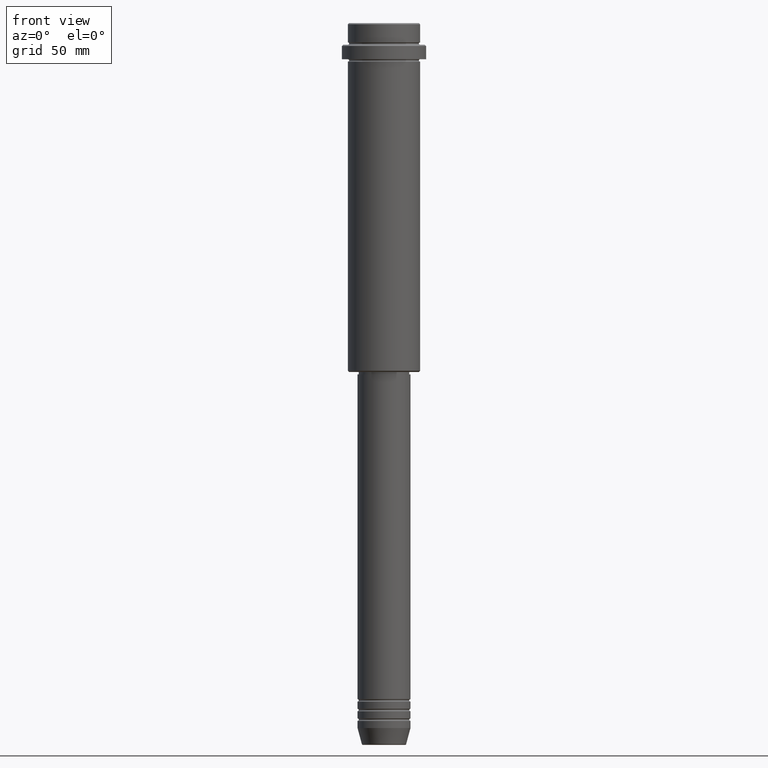
[diagram: clean part render]
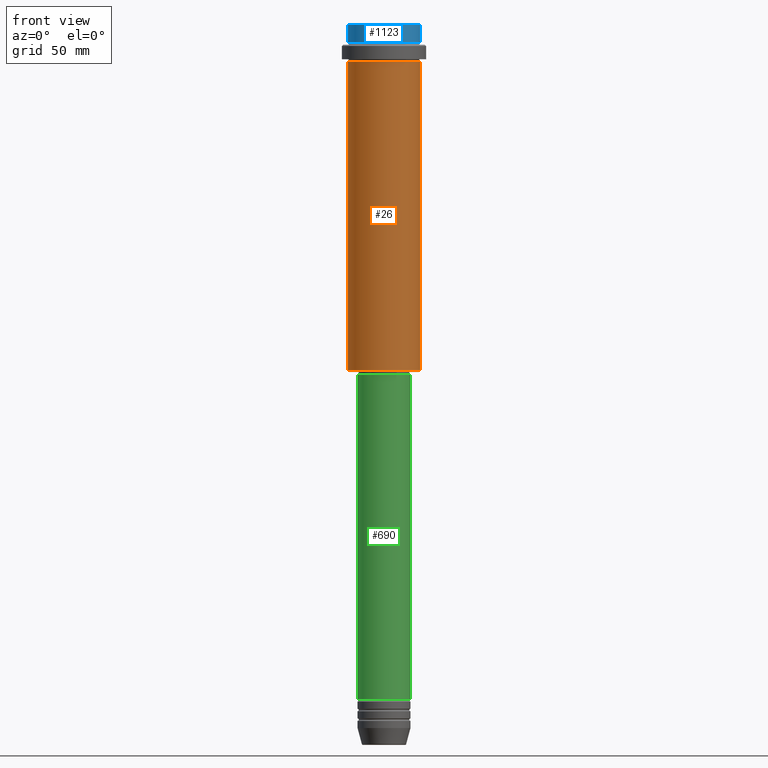
[diagram: same view with three faces highlighted in distinct colors, each labeled with its STEP entity id]
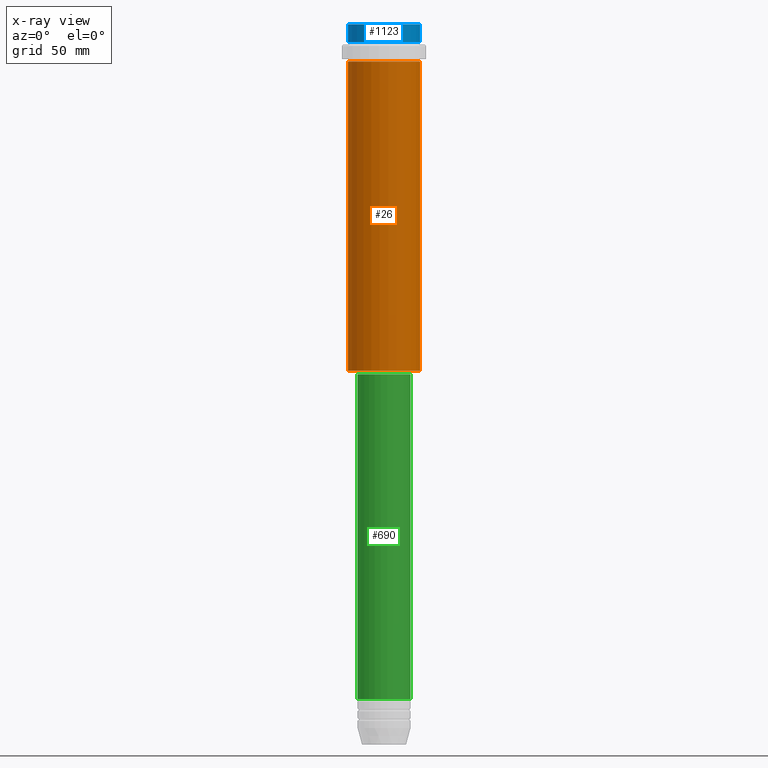
[diagram: x-ray of the same camera — body ghosted, the three highlighted faces saturated]
A machine part, front view with three faces highlighted in distinct colors.
The next image is the same camera in x-ray (body ghosted, the three faces saturated) — at least one of them is partly hidden behind the body in this view.
Their STEP definitions:

[orange] entity #26 — the highlighted cylindrical surface (edge-blend (fillet) strip) has radius 15 mm, axis along (-0, -0, 1).
#26 = ADVANCED_FACE ( 'NONE', ( #1009 ), #709, .T. ) ;
#58 = EDGE_CURVE ( 'NONE', #1363, #704, #749, .T. ) ;
#116 = AXIS2_PLACEMENT_3D ( 'NONE', #368, #834, #1224 ) ;
#150 = CARTESIAN_POINT ( 'NONE',  ( -15.00000000000000000, 1.836970198721029589E-15, -144.5000000000000568 ) ) ;
#166 = DIRECTION ( 'NONE',  ( -0.000000000000000000, -0.000000000000000000, 1.000000000000000000 ) ) ;
#260 = CARTESIAN_POINT ( 'NONE',  ( -15.00000000000000355, 1.836970198721029983E-15, -16.00000000000000000 ) ) ;
#261 = VERTEX_POINT ( 'NONE', #260 ) ;
#275 = CARTESIAN_POINT ( 'NONE',  ( -15.00000000000000000, 1.836970198721029589E-15, 0.000000000000000000 ) ) ;
#322 = ORIENTED_EDGE ( 'NONE', *, *, #657, .F. ) ;
#340 = EDGE_LOOP ( 'NONE', ( #322, #1289, #939, #1336 ) ) ;
#368 = CARTESIAN_POINT ( 'NONE',  ( 0.000000000000000000, 0.000000000000000000, -144.5000000000000568 ) ) ;
#373 = DIRECTION ( 'NONE',  ( -0.000000000000000000, -0.000000000000000000, 1.000000000000000000 ) ) ;
#386 = DIRECTION ( 'NONE',  ( 1.000000000000000000, 0.000000000000000000, 0.000000000000000000 ) ) ;
#504 = AXIS2_PLACEMENT_3D ( 'NONE', #1159, #855, #386 ) ;
#555 = AXIS2_PLACEMENT_3D ( 'NONE', #1344, #166, #1121 ) ;
#582 = CARTESIAN_POINT ( 'NONE',  ( 15.00000000000000000, 0.000000000000000000, 0.000000000000000000 ) ) ;
#657 = EDGE_CURVE ( 'NONE', #1363, #261, #1249, .T. ) ;
#667 = CARTESIAN_POINT ( 'NONE',  ( 15.00000000000000178, 0.000000000000000000, -16.00000000000000000 ) ) ;
#704 = VERTEX_POINT ( 'NONE', #787 ) ;
#709 = CYLINDRICAL_SURFACE ( 'NONE', #555, 15.00000000000000000 ) ;
#735 = DIRECTION ( 'NONE',  ( -0.000000000000000000, -0.000000000000000000, 1.000000000000000000 ) ) ;
#749 = CIRCLE ( 'NONE', #116, 15.00000000000000000 ) ;
#750 = CIRCLE ( 'NONE', #504, 15.00000000000000178 ) ;
#787 = CARTESIAN_POINT ( 'NONE',  ( 15.00000000000000000, 0.000000000000000000, -144.5000000000000568 ) ) ;
#834 = DIRECTION ( 'NONE',  ( -0.000000000000000000, -0.000000000000000000, 1.000000000000000000 ) ) ;
#855 = DIRECTION ( 'NONE',  ( -0.000000000000000000, -0.000000000000000000, 1.000000000000000000 ) ) ;
#879 = VECTOR ( 'NONE', #373, 1000.000000000000000 ) ;
#939 = ORIENTED_EDGE ( 'NONE', *, *, #995, .T. ) ;
#995 = EDGE_CURVE ( 'NONE', #704, #1262, #1164, .T. ) ;
#1009 = FACE_OUTER_BOUND ( 'NONE', #340, .T. ) ;
#1098 = VECTOR ( 'NONE', #735, 1000.000000000000000 ) ;
#1121 = DIRECTION ( 'NONE',  ( 1.000000000000000000, 0.000000000000000000, 0.000000000000000000 ) ) ;
#1149 = EDGE_CURVE ( 'NONE', #261, #1262, #750, .T. ) ;
#1159 = CARTESIAN_POINT ( 'NONE',  ( 0.000000000000000000, 0.000000000000000000, -16.00000000000000000 ) ) ;
#1164 = LINE ( 'NONE', #582, #879 ) ;
#1224 = DIRECTION ( 'NONE',  ( -1.000000000000000000, 0.000000000000000000, 0.000000000000000000 ) ) ;
#1249 = LINE ( 'NONE', #275, #1098 ) ;
#1262 = VERTEX_POINT ( 'NONE', #667 ) ;
#1289 = ORIENTED_EDGE ( 'NONE', *, *, #58, .T. ) ;
#1336 = ORIENTED_EDGE ( 'NONE', *, *, #1149, .F. ) ;
#1344 = CARTESIAN_POINT ( 'NONE',  ( 0.000000000000000000, 0.000000000000000000, 0.000000000000000000 ) ) ;
#1363 = VERTEX_POINT ( 'NONE', #150 ) ;

[blue] entity #1123 — the highlighted cylindrical surface (edge-blend (fillet) strip) has radius 15 mm, axis along (-0, -0, 1).
#97 = CIRCLE ( 'NONE', #418, 15.00000000000000000 ) ;
#144 = CARTESIAN_POINT ( 'NONE',  ( -15.00000000000000000, 1.836970198721029589E-15, -7.999999999999998224 ) ) ;
#146 = EDGE_LOOP ( 'NONE', ( #168, #1412, #918, #1393 ) ) ;
#168 = ORIENTED_EDGE ( 'NONE', *, *, #1068, .F. ) ;
#192 = CYLINDRICAL_SURFACE ( 'NONE', #437, 15.00000000000000000 ) ;
#209 = DIRECTION ( 'NONE',  ( 1.000000000000000000, 0.000000000000000000, 0.000000000000000000 ) ) ;
#223 = CARTESIAN_POINT ( 'NONE',  ( 15.00000000000000000, 0.000000000000000000, -0.5000000000000386358 ) ) ;
#233 = AXIS2_PLACEMENT_3D ( 'NONE', #1414, #342, #209 ) ;
#316 = VERTEX_POINT ( 'NONE', #144 ) ;
#342 = DIRECTION ( 'NONE',  ( -0.000000000000000000, -0.000000000000000000, 1.000000000000000000 ) ) ;
#377 = CARTESIAN_POINT ( 'NONE',  ( -15.00000000000000000, 1.836970198721029589E-15, -0.5000000000000386358 ) ) ;
#398 = DIRECTION ( 'NONE',  ( 1.000000000000000000, 0.000000000000000000, 0.000000000000000000 ) ) ;
#400 = DIRECTION ( 'NONE',  ( 0.000000000000000000, 0.000000000000000000, -1.000000000000000000 ) ) ;
#418 = AXIS2_PLACEMENT_3D ( 'NONE', #714, #400, #1132 ) ;
#437 = AXIS2_PLACEMENT_3D ( 'NONE', #1365, #849, #398 ) ;
#510 = VECTOR ( 'NONE', #853, 1000.000000000000000 ) ;
#539 = CARTESIAN_POINT ( 'NONE',  ( 15.00000000000000000, 0.000000000000000000, 0.000000000000000000 ) ) ;
#545 = EDGE_CURVE ( 'NONE', #1186, #990, #974, .T. ) ;
#631 = EDGE_CURVE ( 'NONE', #990, #868, #97, .T. ) ;
#643 = CARTESIAN_POINT ( 'NONE',  ( 15.00000000000000000, 0.000000000000000000, -7.999999999999998224 ) ) ;
#714 = CARTESIAN_POINT ( 'NONE',  ( 0.000000000000000000, 0.000000000000000000, -0.5000000000000386358 ) ) ;
#733 = DIRECTION ( 'NONE',  ( -0.000000000000000000, -0.000000000000000000, 1.000000000000000000 ) ) ;
#828 = LINE ( 'NONE', #1142, #945 ) ;
#849 = DIRECTION ( 'NONE',  ( -0.000000000000000000, -0.000000000000000000, 1.000000000000000000 ) ) ;
#853 = DIRECTION ( 'NONE',  ( -0.000000000000000000, -0.000000000000000000, 1.000000000000000000 ) ) ;
#868 = VERTEX_POINT ( 'NONE', #377 ) ;
#918 = ORIENTED_EDGE ( 'NONE', *, *, #545, .T. ) ;
#945 = VECTOR ( 'NONE', #733, 1000.000000000000000 ) ;
#974 = LINE ( 'NONE', #539, #510 ) ;
#990 = VERTEX_POINT ( 'NONE', #223 ) ;
#1068 = EDGE_CURVE ( 'NONE', #316, #868, #828, .T. ) ;
#1123 = ADVANCED_FACE ( 'NONE', ( #1377 ), #192, .T. ) ;
#1132 = DIRECTION ( 'NONE',  ( 1.000000000000000000, 0.000000000000000000, 0.000000000000000000 ) ) ;
#1142 = CARTESIAN_POINT ( 'NONE',  ( -15.00000000000000000, 1.836970198721029589E-15, 0.000000000000000000 ) ) ;
#1186 = VERTEX_POINT ( 'NONE', #643 ) ;
#1194 = EDGE_CURVE ( 'NONE', #316, #1186, #1226, .T. ) ;
#1226 = CIRCLE ( 'NONE', #233, 15.00000000000000000 ) ;
#1365 = CARTESIAN_POINT ( 'NONE',  ( 0.000000000000000000, 0.000000000000000000, 0.000000000000000000 ) ) ;
#1377 = FACE_OUTER_BOUND ( 'NONE', #146, .T. ) ;
#1393 = ORIENTED_EDGE ( 'NONE', *, *, #631, .T. ) ;
#1412 = ORIENTED_EDGE ( 'NONE', *, *, #1194, .T. ) ;
#1414 = CARTESIAN_POINT ( 'NONE',  ( 0.000000000000000000, 0.000000000000000000, -7.999999999999998224 ) ) ;

[green] entity #690 — the highlighted cylindrical surface (edge-blend (fillet) strip) has radius 11 mm, axis along (-0, -0, 1).
#17 = CARTESIAN_POINT ( 'NONE',  ( 0.000000000000000000, 0.000000000000000000, -280.9999999999999432 ) ) ;
#53 = ORIENTED_EDGE ( 'NONE', *, *, #673, .F. ) ;
#80 = CARTESIAN_POINT ( 'NONE',  ( 10.99999999999999822, 0.000000000000000000, -145.9999999999999432 ) ) ;
#125 = ORIENTED_EDGE ( 'NONE', *, *, #512, .T. ) ;
#160 = DIRECTION ( 'NONE',  ( -0.000000000000000000, -0.000000000000000000, 1.000000000000000000 ) ) ;
#174 = DIRECTION ( 'NONE',  ( 1.000000000000000000, 0.000000000000000000, 0.000000000000000000 ) ) ;
#206 = EDGE_LOOP ( 'NONE', ( #278, #399, #125, #53 ) ) ;
#215 = EDGE_CURVE ( 'NONE', #421, #569, #668, .T. ) ;
#218 = CARTESIAN_POINT ( 'NONE',  ( 0.000000000000000000, 0.000000000000000000, 0.000000000000000000 ) ) ;
#247 = DIRECTION ( 'NONE',  ( -0.000000000000000000, -0.000000000000000000, 1.000000000000000000 ) ) ;
#278 = ORIENTED_EDGE ( 'NONE', *, *, #215, .F. ) ;
#292 = CARTESIAN_POINT ( 'NONE',  ( 0.000000000000000000, 0.000000000000000000, -145.9999999999999432 ) ) ;
#297 = EDGE_CURVE ( 'NONE', #421, #888, #1115, .T. ) ;
#313 = CIRCLE ( 'NONE', #1141, 10.99999999999999822 ) ;
#383 = VERTEX_POINT ( 'NONE', #80 ) ;
#399 = ORIENTED_EDGE ( 'NONE', *, *, #297, .T. ) ;
#421 = VERTEX_POINT ( 'NONE', #518 ) ;
#435 = DIRECTION ( 'NONE',  ( 1.000000000000000000, 0.000000000000000000, 0.000000000000000000 ) ) ;
#462 = CARTESIAN_POINT ( 'NONE',  ( -10.99999999999999822, 1.347111479062088207E-15, -145.9999999999999432 ) ) ;
#512 = EDGE_CURVE ( 'NONE', #888, #383, #1245, .T. ) ;
#518 = CARTESIAN_POINT ( 'NONE',  ( -11.00000000000000000, 1.347111479062088405E-15, -280.9999999999999432 ) ) ;
#569 = VERTEX_POINT ( 'NONE', #462 ) ;
#604 = VECTOR ( 'NONE', #160, 1000.000000000000000 ) ;
#627 = CARTESIAN_POINT ( 'NONE',  ( -11.00000000000000000, 1.347111479062088405E-15, 0.000000000000000000 ) ) ;
#654 = AXIS2_PLACEMENT_3D ( 'NONE', #17, #247, #1206 ) ;
#668 = LINE ( 'NONE', #627, #678 ) ;
#673 = EDGE_CURVE ( 'NONE', #569, #383, #313, .T. ) ;
#678 = VECTOR ( 'NONE', #1089, 1000.000000000000000 ) ;
#690 = ADVANCED_FACE ( 'NONE', ( #1001 ), #899, .T. ) ;
#888 = VERTEX_POINT ( 'NONE', #1177 ) ;
#894 = AXIS2_PLACEMENT_3D ( 'NONE', #218, #1327, #435 ) ;
#899 = CYLINDRICAL_SURFACE ( 'NONE', #894, 11.00000000000000000 ) ;
#1001 = FACE_OUTER_BOUND ( 'NONE', #206, .T. ) ;
#1040 = CARTESIAN_POINT ( 'NONE',  ( 11.00000000000000000, 0.000000000000000000, 0.000000000000000000 ) ) ;
#1089 = DIRECTION ( 'NONE',  ( -0.000000000000000000, -0.000000000000000000, 1.000000000000000000 ) ) ;
#1115 = CIRCLE ( 'NONE', #654, 11.00000000000000000 ) ;
#1141 = AXIS2_PLACEMENT_3D ( 'NONE', #292, #1154, #174 ) ;
#1154 = DIRECTION ( 'NONE',  ( -0.000000000000000000, -0.000000000000000000, 1.000000000000000000 ) ) ;
#1177 = CARTESIAN_POINT ( 'NONE',  ( 11.00000000000000000, 0.000000000000000000, -280.9999999999999432 ) ) ;
#1206 = DIRECTION ( 'NONE',  ( 1.000000000000000000, 0.000000000000000000, 0.000000000000000000 ) ) ;
#1245 = LINE ( 'NONE', #1040, #604 ) ;
#1327 = DIRECTION ( 'NONE',  ( -0.000000000000000000, -0.000000000000000000, 1.000000000000000000 ) ) ;